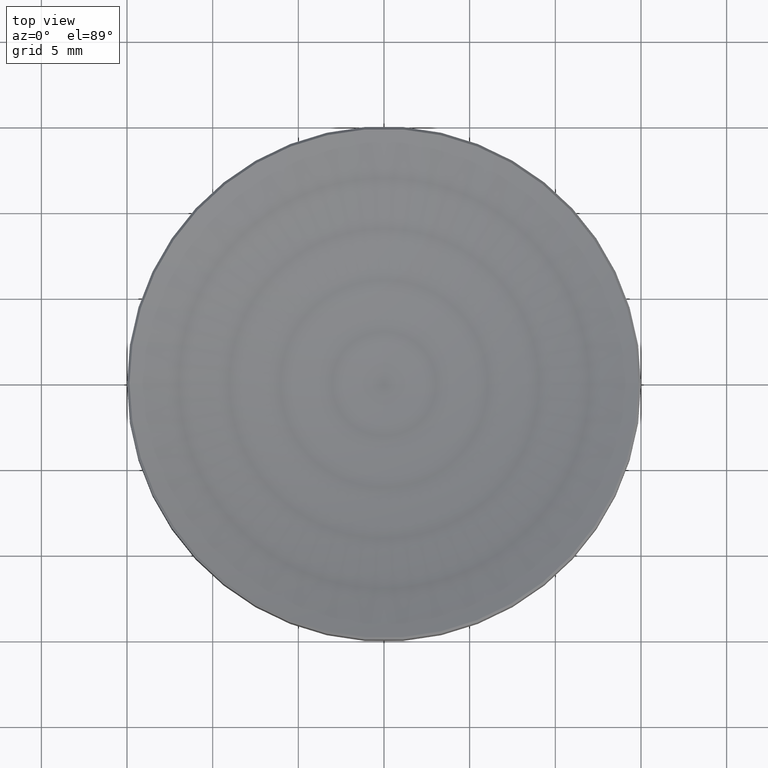
[diagram: clean part render]
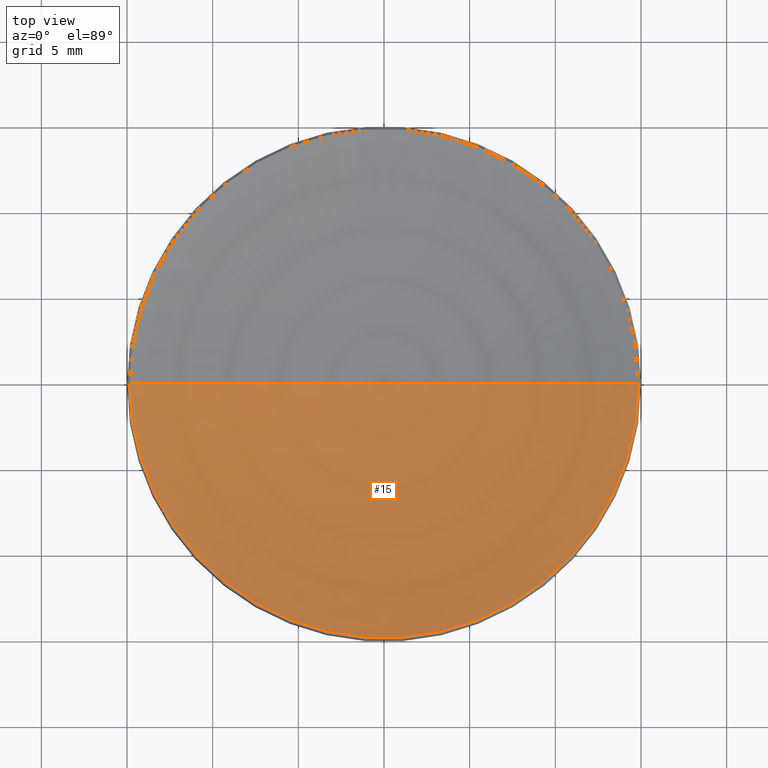
[diagram: same view with one face highlighted and labeled with its STEP entity id]
A machine part, top view. The second image highlights one B-rep face of the part: STEP entity #15.
In plain terms, the highlighted toroidal blend (fillet) surface has major radius 0.0007 mm and minor (blend) radius 41.3 mm.
Its self-contained STEP definition (entity closure, byte-faithful):
#10 = CIRCLE ( 'NONE', #167, 41.30000000000000426 ) ;
#15 = ADVANCED_FACE ( 'NONE', ( #209 ), #138, .F. ) ;
#26 = DIRECTION ( 'NONE',  ( 1.000000000000000000, 0.000000000000000000, 0.000000000000000000 ) ) ;
#44 = AXIS2_PLACEMENT_3D ( 'NONE', #182, #266, #102 ) ;
#48 = VERTEX_POINT ( 'NONE', #127 ) ;
#50 = ORIENTED_EDGE ( 'NONE', *, *, #62, .F. ) ;
#62 = EDGE_CURVE ( 'NONE', #48, #249, #10, .T. ) ;
#69 = EDGE_LOOP ( 'NONE', ( #50, #170, #235 ) ) ;
#78 = DIRECTION ( 'NONE',  ( 0.000000000000000000, 0.000000000000000000, -1.000000000000000000 ) ) ;
#82 = CARTESIAN_POINT ( 'NONE',  ( 0.000000000000000000, 0.000000000000000000, 5.264129495517397395 ) ) ;
#84 = CARTESIAN_POINT ( 'NONE',  ( 14.85587050448259916, 0.000000000000000000, 5.264129495517397395 ) ) ;
#86 = AXIS2_PLACEMENT_3D ( 'NONE', #82, #166, #185 ) ;
#102 = DIRECTION ( 'NONE',  ( -1.000000000000000000, 1.224646799147353207E-16, 0.000000000000000000 ) ) ;
#118 = CARTESIAN_POINT ( 'NONE',  ( -14.85587050448259916, 1.819319426186219465E-15, 5.264129495517397395 ) ) ;
#127 = CARTESIAN_POINT ( 'NONE',  ( 0.000000000000000000, 0.000000000000000000, 2.500000000000000000 ) ) ;
#130 = CIRCLE ( 'NONE', #44, 41.30000000000000426 ) ;
#136 = VERTEX_POINT ( 'NONE', #118 ) ;
#138 = TOROIDAL_SURFACE ( 'NONE', #226, 0.0006800010524327451678, 41.30000000000000426 ) ;
#151 = CARTESIAN_POINT ( 'NONE',  ( 0.000000000000000000, 0.000000000000000000, 43.79999999440192227 ) ) ;
#166 = DIRECTION ( 'NONE',  ( -0.000000000000000000, -0.000000000000000000, 1.000000000000000000 ) ) ;
#167 = AXIS2_PLACEMENT_3D ( 'NONE', #263, #240, #78 ) ;
#170 = ORIENTED_EDGE ( 'NONE', *, *, #242, .T. ) ;
#182 = CARTESIAN_POINT ( 'NONE',  ( -0.0006800010524327451678, 8.327611122785927967E-20, 43.79999999440192227 ) ) ;
#185 = DIRECTION ( 'NONE',  ( 1.000000000000000000, 0.000000000000000000, 0.000000000000000000 ) ) ;
#199 = CIRCLE ( 'NONE', #86, 14.85587050448260094 ) ;
#209 = FACE_OUTER_BOUND ( 'NONE', #69, .T. ) ;
#226 = AXIS2_PLACEMENT_3D ( 'NONE', #151, #233, #26 ) ;
#233 = DIRECTION ( 'NONE',  ( -0.000000000000000000, -0.000000000000000000, 1.000000000000000000 ) ) ;
#235 = ORIENTED_EDGE ( 'NONE', *, *, #250, .T. ) ;
#240 = DIRECTION ( 'NONE',  ( 0.000000000000000000, -1.000000000000000000, 0.000000000000000000 ) ) ;
#242 = EDGE_CURVE ( 'NONE', #48, #136, #130, .T. ) ;
#249 = VERTEX_POINT ( 'NONE', #84 ) ;
#250 = EDGE_CURVE ( 'NONE', #136, #249, #199, .T. ) ;
#263 = CARTESIAN_POINT ( 'NONE',  ( 0.0006800010524327451678, 0.000000000000000000, 43.79999999440192227 ) ) ;
#266 = DIRECTION ( 'NONE',  ( 1.224646799147353207E-16, 1.000000000000000000, 0.000000000000000000 ) ) ;